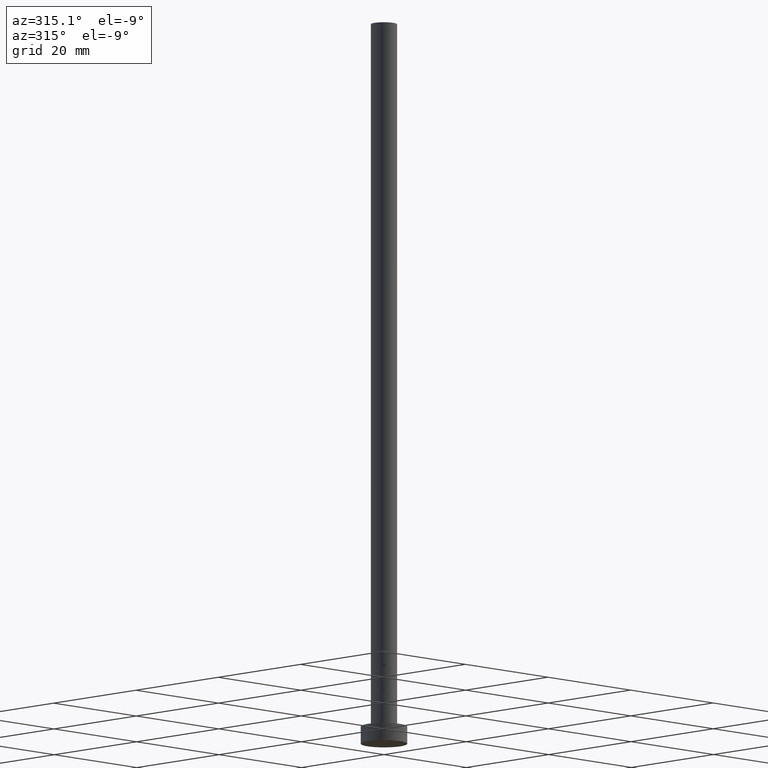
[diagram: clean part render]
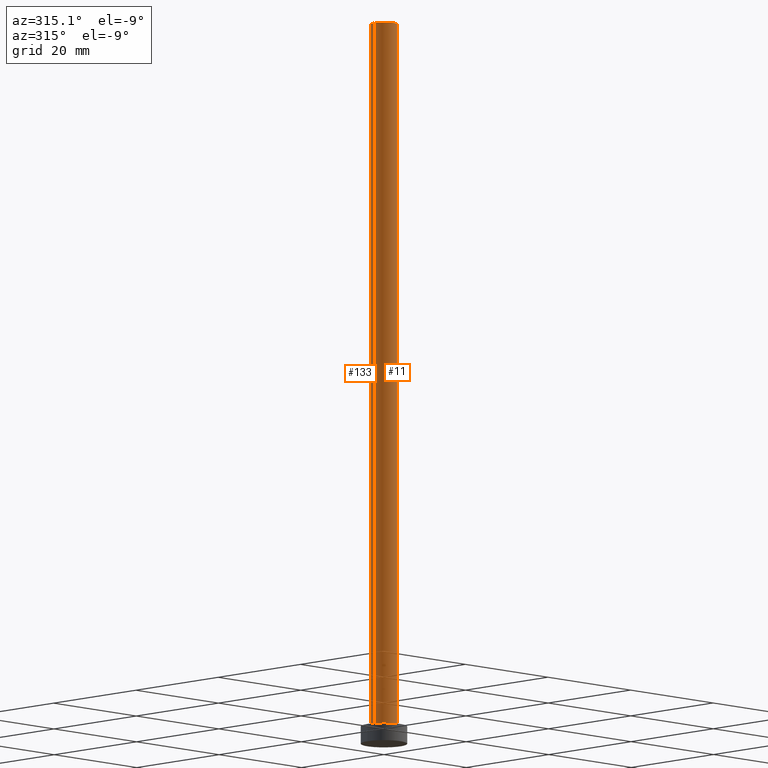
[diagram: same view with one multi-face feature highlighted, each face labeled with its STEP entity id]
A machine part, auxiliary view. The highlighted faces form ONE feature: a constant-radius fillet chain: 2 tangent blend faces with common blend radius 2.25 mm. The faces share edges in the B-rep.
Their STEP definitions:
[1] entity #11 (Cylinder):
#1 = DIRECTION ( 'NONE',  ( -0.000000000000000000, -0.000000000000000000, -1.000000000000000000 ) ) ;
#11 = ADVANCED_FACE ( 'NONE', ( #151 ), #90, .T. ) ;
#22 = DIRECTION ( 'NONE',  ( 1.000000000000000000, 0.000000000000000000, 0.000000000000000000 ) ) ;
#23 = ORIENTED_EDGE ( 'NONE', *, *, #173, .F. ) ;
#26 = VERTEX_POINT ( 'NONE', #186 ) ;
#34 = AXIS2_PLACEMENT_3D ( 'NONE', #239, #138, #22 ) ;
#38 = CARTESIAN_POINT ( 'NONE',  ( 2.250000000000000000, 2.755455298081543792E-16, 125.0000000000000000 ) ) ;
#61 = VERTEX_POINT ( 'NONE', #210 ) ;
#72 = EDGE_CURVE ( 'NONE', #197, #26, #121, .T. ) ;
#74 = CARTESIAN_POINT ( 'NONE',  ( -2.250000000000000000, 0.000000000000000000, 125.0000000000000000 ) ) ;
#76 = DIRECTION ( 'NONE',  ( 0.000000000000000000, 0.000000000000000000, 1.000000000000000000 ) ) ;
#90 = CYLINDRICAL_SURFACE ( 'NONE', #201, 2.250000000000000000 ) ;
#94 = EDGE_CURVE ( 'NONE', #26, #61, #250, .T. ) ;
#96 = CARTESIAN_POINT ( 'NONE',  ( 0.000000000000000000, 0.000000000000000000, 3.000000000000000000 ) ) ;
#97 = LINE ( 'NONE', #38, #99 ) ;
#98 = DIRECTION ( 'NONE',  ( -0.000000000000000000, -0.000000000000000000, -1.000000000000000000 ) ) ;
#99 = VECTOR ( 'NONE', #98, 1000.000000000000000 ) ;
#100 = CARTESIAN_POINT ( 'NONE',  ( -2.250000000000000000, 0.000000000000000000, 125.0000000000000000 ) ) ;
#107 = ORIENTED_EDGE ( 'NONE', *, *, #94, .T. ) ;
#121 = LINE ( 'NONE', #74, #135 ) ;
#134 = CARTESIAN_POINT ( 'NONE',  ( 2.250000000000000000, 2.755455298081543792E-16, 125.0000000000000000 ) ) ;
#135 = VECTOR ( 'NONE', #1, 1000.000000000000000 ) ;
#138 = DIRECTION ( 'NONE',  ( 0.000000000000000000, 0.000000000000000000, 1.000000000000000000 ) ) ;
#142 = ORIENTED_EDGE ( 'NONE', *, *, #226, .F. ) ;
#144 = CIRCLE ( 'NONE', #34, 2.250000000000000000 ) ;
#147 = DIRECTION ( 'NONE',  ( -0.000000000000000000, -0.000000000000000000, -1.000000000000000000 ) ) ;
#151 = FACE_OUTER_BOUND ( 'NONE', #195, .T. ) ;
#164 = CARTESIAN_POINT ( 'NONE',  ( 0.000000000000000000, 0.000000000000000000, 125.0000000000000000 ) ) ;
#173 = EDGE_CURVE ( 'NONE', #179, #61, #97, .T. ) ;
#179 = VERTEX_POINT ( 'NONE', #134 ) ;
#181 = ORIENTED_EDGE ( 'NONE', *, *, #72, .T. ) ;
#186 = CARTESIAN_POINT ( 'NONE',  ( -2.250000000000000000, 0.000000000000000000, 3.000000000000000000 ) ) ;
#195 = EDGE_LOOP ( 'NONE', ( #23, #142, #181, #107 ) ) ;
#197 = VERTEX_POINT ( 'NONE', #100 ) ;
#201 = AXIS2_PLACEMENT_3D ( 'NONE', #164, #147, #222 ) ;
#207 = DIRECTION ( 'NONE',  ( 1.000000000000000000, 0.000000000000000000, 0.000000000000000000 ) ) ;
#210 = CARTESIAN_POINT ( 'NONE',  ( 2.250000000000000000, 2.755455298081543792E-16, 3.000000000000000000 ) ) ;
#222 = DIRECTION ( 'NONE',  ( -1.000000000000000000, 0.000000000000000000, 0.000000000000000000 ) ) ;
#226 = EDGE_CURVE ( 'NONE', #197, #179, #144, .T. ) ;
#227 = AXIS2_PLACEMENT_3D ( 'NONE', #96, #76, #207 ) ;
#239 = CARTESIAN_POINT ( 'NONE',  ( 0.000000000000000000, 0.000000000000000000, 125.0000000000000000 ) ) ;
#250 = CIRCLE ( 'NONE', #227, 2.250000000000000000 ) ;
[2] entity #133 (Cylinder):
#1 = DIRECTION ( 'NONE',  ( -0.000000000000000000, -0.000000000000000000, -1.000000000000000000 ) ) ;
#10 = ORIENTED_EDGE ( 'NONE', *, *, #255, .F. ) ;
#26 = VERTEX_POINT ( 'NONE', #186 ) ;
#29 = AXIS2_PLACEMENT_3D ( 'NONE', #230, #58, #78 ) ;
#38 = CARTESIAN_POINT ( 'NONE',  ( 2.250000000000000000, 2.755455298081543792E-16, 125.0000000000000000 ) ) ;
#41 = CYLINDRICAL_SURFACE ( 'NONE', #29, 2.250000000000000000 ) ;
#58 = DIRECTION ( 'NONE',  ( -0.000000000000000000, -0.000000000000000000, -1.000000000000000000 ) ) ;
#61 = VERTEX_POINT ( 'NONE', #210 ) ;
#62 = ORIENTED_EDGE ( 'NONE', *, *, #173, .T. ) ;
#63 = CARTESIAN_POINT ( 'NONE',  ( 0.000000000000000000, 0.000000000000000000, 125.0000000000000000 ) ) ;
#72 = EDGE_CURVE ( 'NONE', #197, #26, #121, .T. ) ;
#74 = CARTESIAN_POINT ( 'NONE',  ( -2.250000000000000000, 0.000000000000000000, 125.0000000000000000 ) ) ;
#77 = CARTESIAN_POINT ( 'NONE',  ( 0.000000000000000000, 0.000000000000000000, 3.000000000000000000 ) ) ;
#78 = DIRECTION ( 'NONE',  ( -1.000000000000000000, 0.000000000000000000, 0.000000000000000000 ) ) ;
#80 = ORIENTED_EDGE ( 'NONE', *, *, #128, .T. ) ;
#97 = LINE ( 'NONE', #38, #99 ) ;
#98 = DIRECTION ( 'NONE',  ( -0.000000000000000000, -0.000000000000000000, -1.000000000000000000 ) ) ;
#99 = VECTOR ( 'NONE', #98, 1000.000000000000000 ) ;
#100 = CARTESIAN_POINT ( 'NONE',  ( -2.250000000000000000, 0.000000000000000000, 125.0000000000000000 ) ) ;
#101 = AXIS2_PLACEMENT_3D ( 'NONE', #63, #158, #235 ) ;
#106 = CIRCLE ( 'NONE', #111, 2.250000000000000000 ) ;
#111 = AXIS2_PLACEMENT_3D ( 'NONE', #77, #154, #156 ) ;
#121 = LINE ( 'NONE', #74, #135 ) ;
#125 = EDGE_LOOP ( 'NONE', ( #10, #62, #80, #217 ) ) ;
#128 = EDGE_CURVE ( 'NONE', #61, #26, #106, .T. ) ;
#133 = ADVANCED_FACE ( 'NONE', ( #171 ), #41, .T. ) ;
#134 = CARTESIAN_POINT ( 'NONE',  ( 2.250000000000000000, 2.755455298081543792E-16, 125.0000000000000000 ) ) ;
#135 = VECTOR ( 'NONE', #1, 1000.000000000000000 ) ;
#154 = DIRECTION ( 'NONE',  ( 0.000000000000000000, 0.000000000000000000, 1.000000000000000000 ) ) ;
#156 = DIRECTION ( 'NONE',  ( 1.000000000000000000, 0.000000000000000000, 0.000000000000000000 ) ) ;
#158 = DIRECTION ( 'NONE',  ( 0.000000000000000000, 0.000000000000000000, 1.000000000000000000 ) ) ;
#171 = FACE_OUTER_BOUND ( 'NONE', #125, .T. ) ;
#173 = EDGE_CURVE ( 'NONE', #179, #61, #97, .T. ) ;
#177 = CIRCLE ( 'NONE', #101, 2.250000000000000000 ) ;
#179 = VERTEX_POINT ( 'NONE', #134 ) ;
#186 = CARTESIAN_POINT ( 'NONE',  ( -2.250000000000000000, 0.000000000000000000, 3.000000000000000000 ) ) ;
#197 = VERTEX_POINT ( 'NONE', #100 ) ;
#210 = CARTESIAN_POINT ( 'NONE',  ( 2.250000000000000000, 2.755455298081543792E-16, 3.000000000000000000 ) ) ;
#217 = ORIENTED_EDGE ( 'NONE', *, *, #72, .F. ) ;
#230 = CARTESIAN_POINT ( 'NONE',  ( 0.000000000000000000, 0.000000000000000000, 125.0000000000000000 ) ) ;
#235 = DIRECTION ( 'NONE',  ( 1.000000000000000000, 0.000000000000000000, 0.000000000000000000 ) ) ;
#255 = EDGE_CURVE ( 'NONE', #179, #197, #177, .T. ) ;